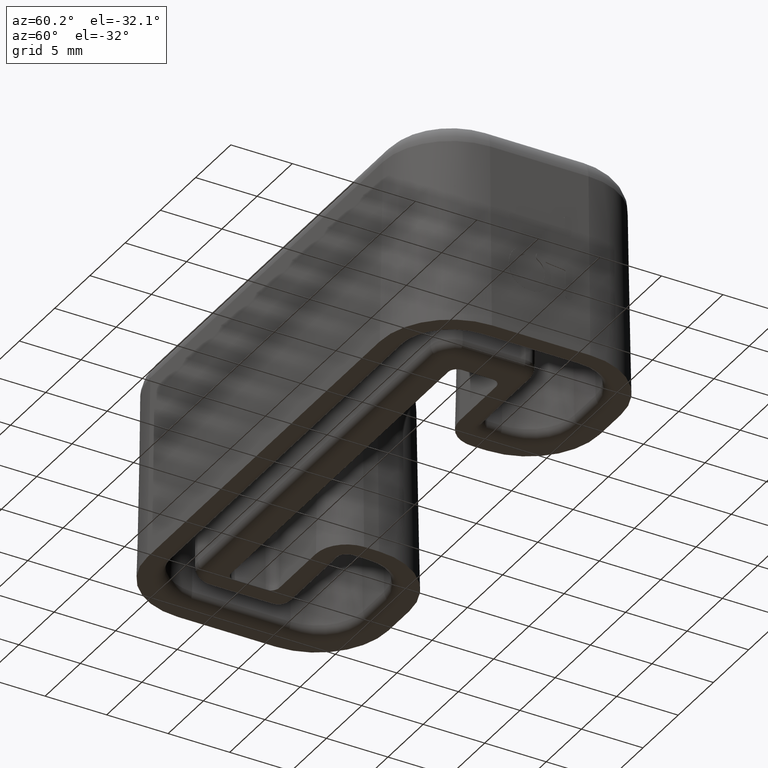
[diagram: clean part render]
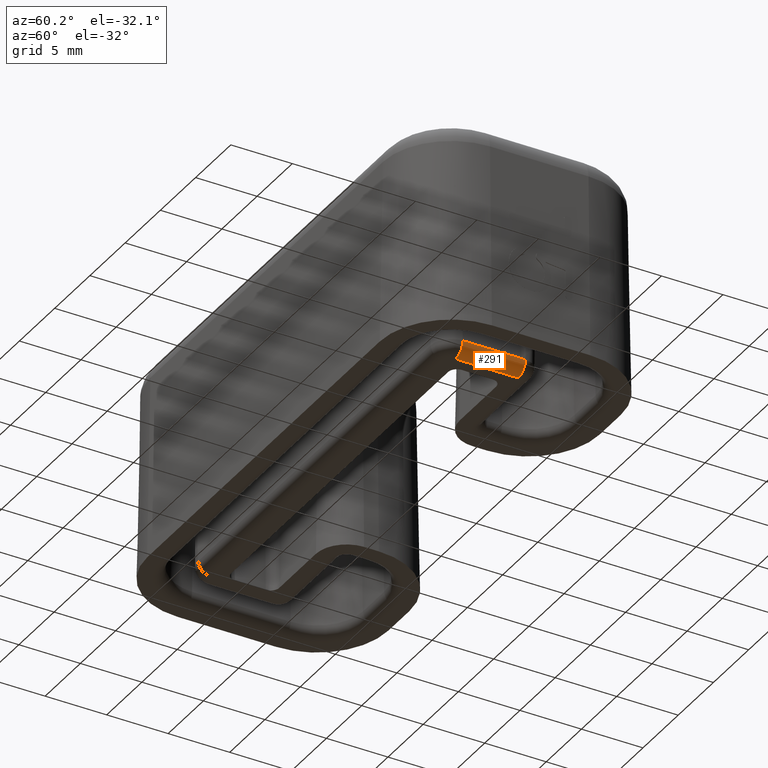
[diagram: same view with one face highlighted and labeled with its STEP entity id]
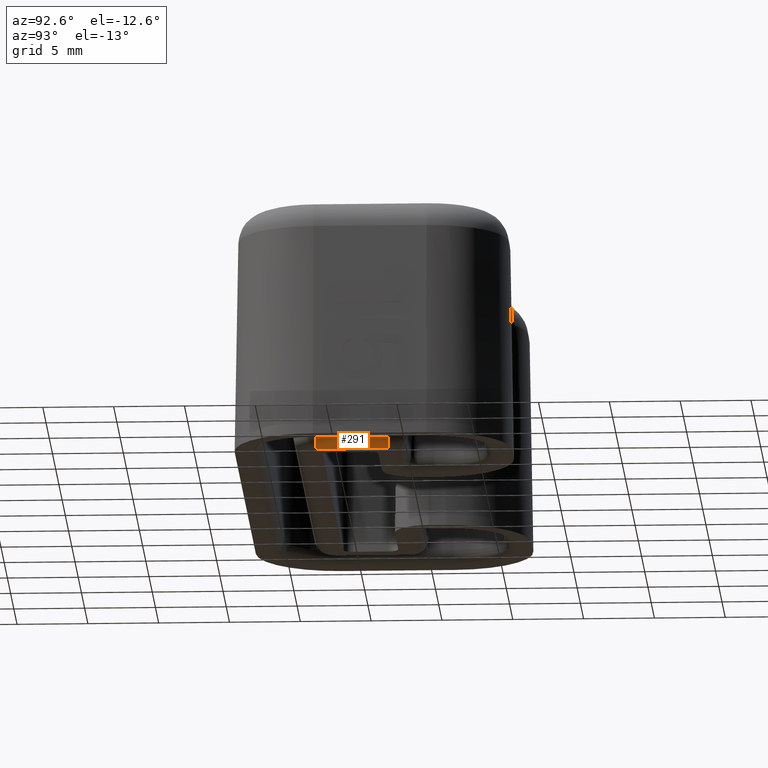
[diagram: same view with one face highlighted and labeled with its STEP entity id]
A machine part, auxiliary view. The second image highlights one B-rep face of the part: STEP entity #291.
A second angle (auxiliary view) of the same face is appended — the face is thin or edge-on in the first view.
In plain terms, the highlighted cylindrical surface (edge-blend (fillet) strip) has radius 1 mm, axis along (0, -1, 0).
Its self-contained STEP definition (entity closure, byte-faithful):
#291=ADVANCED_FACE('',(#629),#630,.T.);
#629=FACE_OUTER_BOUND('',#1051,.T.);
#630=CYLINDRICAL_SURFACE('',#1052,1.0);
#1051=EDGE_LOOP('',(#2438,#2439,#2440,#2441));
#1052=AXIS2_PLACEMENT_3D('',#2442,#2443,#2444);
#2438=ORIENTED_EDGE('',*,*,#3239,.T.);
#2439=ORIENTED_EDGE('',*,*,#3240,.F.);
#2440=ORIENTED_EDGE('',*,*,#3234,.F.);
#2441=ORIENTED_EDGE('',*,*,#3095,.F.);
#2442=CARTESIAN_POINT('',(17.1554767629611,3.5,1.0));
#2443=DIRECTION('',(0.0,-1.0,0.0));
#2444=DIRECTION('',(0.0,0.0,1.0));
#3095=EDGE_CURVE('',#3712,#3704,#3715,.F.);
#3234=EDGE_CURVE('',#3704,#3945,#3946,.T.);
#3239=EDGE_CURVE('',#3712,#3953,#3954,.T.);
#3240=EDGE_CURVE('',#3945,#3953,#3955,.F.);
#3704=VERTEX_POINT('',#5208);
#3712=VERTEX_POINT('',#5218);
#3715=LINE('',#5222,#5223);
#3945=VERTEX_POINT('',#5504);
#3946=CIRCLE('',#5505,1.0);
#3953=VERTEX_POINT('',#5512);
#3954=CIRCLE('',#5513,1.0);
#3955=LINE('',#5514,#5515);
#5208=CARTESIAN_POINT('',(18.1553244581175,8.6,0.982547593562718));
#5218=CARTESIAN_POINT('',(18.1553244581175,3.5,0.982547593562718));
#5222=CARTESIAN_POINT('',(18.1553244581175,0.0,0.982547593562717));
#5223=VECTOR('',#5876,1000.0);
#5504=CARTESIAN_POINT('',(17.1554767629611,8.6,0.0));
#5505=AXIS2_PLACEMENT_3D('',#6189,#6190,#6191);
#5512=CARTESIAN_POINT('',(17.1554767629611,3.5,0.0));
#5513=AXIS2_PLACEMENT_3D('',#6204,#6205,#6206);
#5514=CARTESIAN_POINT('',(17.1554767629611,3.5,0.0));
#5515=VECTOR('',#6207,1000.0);
#5876=DIRECTION('',(0.0,-1.0,0.0));
#6189=CARTESIAN_POINT('',(17.1554767629611,8.6,1.0));
#6190=DIRECTION('',(0.0,1.0,0.0));
#6191=DIRECTION('',(0.0,0.0,1.0));
#6204=CARTESIAN_POINT('',(17.1554767629611,3.5,1.0));
#6205=DIRECTION('',(0.0,1.0,0.0));
#6206=DIRECTION('',(0.0,0.0,1.0));
#6207=DIRECTION('',(0.0,1.0,0.0));